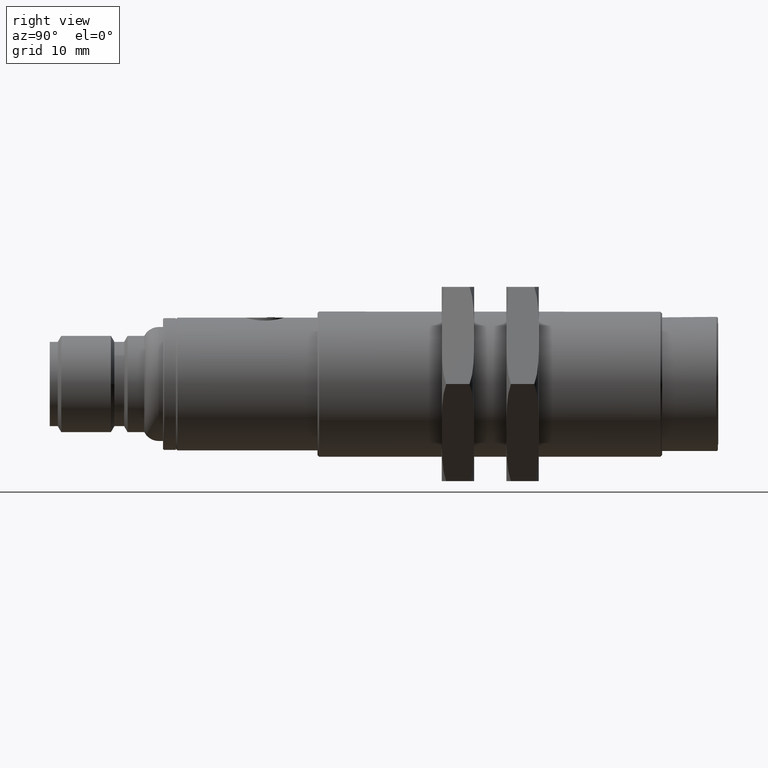
[diagram: clean part render]
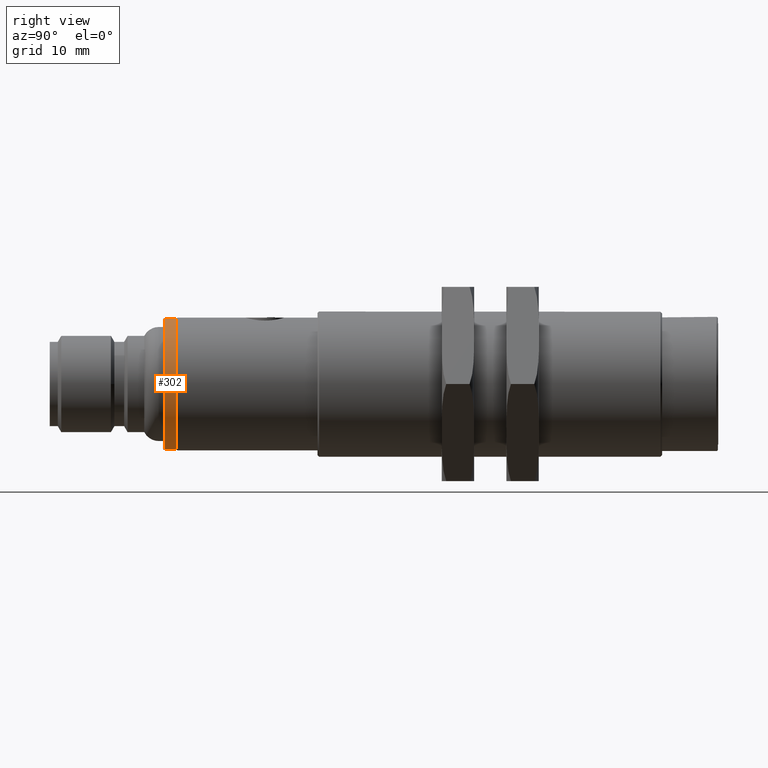
[diagram: same view with one face highlighted and labeled with its STEP entity id]
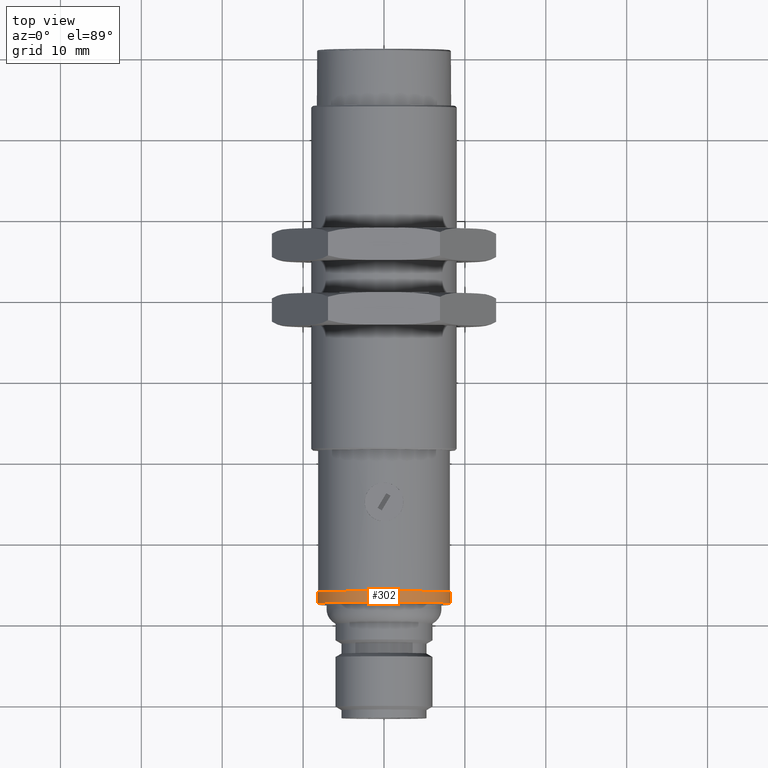
[diagram: same view with one face highlighted and labeled with its STEP entity id]
A machine part, right view. The second image highlights one B-rep face of the part: STEP entity #302.
A second angle (top view) of the same face is appended — the face is thin or edge-on in the first view.
In plain terms, the highlighted cylindrical surface (bore or boss wall) has radius 8.2 mm, axis along (0, -1, 0).
Its self-contained STEP definition (entity closure, byte-faithful):
#18 = EDGE_CURVE ( 'NONE', #1595, #1595, #3892, .T. ) ;
#50 = CARTESIAN_POINT ( 'NONE',  ( 0.000000000000000000, -1.024959437166984122, -0.003432467006220472731 ) ) ;
#302 = ADVANCED_FACE ( 'NONE', ( #796, #3517 ), #3446, .T. ) ;
#432 = AXIS2_PLACEMENT_3D ( 'NONE', #2782, #774, #3107 ) ;
#632 = CARTESIAN_POINT ( 'NONE',  ( -0.3228346456692913757, -1.024959437166984122, -0.003432460299556047527 ) ) ;
#670 = ORIENTED_EDGE ( 'NONE', *, *, #18, .F. ) ;
#774 = DIRECTION ( 'NONE',  ( 0.000000000000000000, -1.000000000000000000, 0.000000000000000000 ) ) ;
#796 = FACE_OUTER_BOUND ( 'NONE', #1893, .T. ) ;
#987 = VERTEX_POINT ( 'NONE', #1738 ) ;
#1022 = DIRECTION ( 'NONE',  ( -0.9999999999999997780, 0.000000000000000000, 2.077430200071127102E-08 ) ) ;
#1079 = DIRECTION ( 'NONE',  ( -0.9999999999999997780, 0.000000000000000000, 2.077430200071127102E-08 ) ) ;
#1463 = EDGE_CURVE ( 'NONE', #987, #987, #2877, .T. ) ;
#1595 = VERTEX_POINT ( 'NONE', #632 ) ;
#1738 = CARTESIAN_POINT ( 'NONE',  ( -0.3228346456692913757, -1.080077547403204719, -0.003432460299556047527 ) ) ;
#1893 = EDGE_LOOP ( 'NONE', ( #670 ) ) ;
#1936 = AXIS2_PLACEMENT_3D ( 'NONE', #50, #2790, #1079 ) ;
#2782 = CARTESIAN_POINT ( 'NONE',  ( 0.000000000000000000, -1.024959437166984122, -0.003432467006220472731 ) ) ;
#2790 = DIRECTION ( 'NONE',  ( 0.000000000000000000, 1.000000000000000000, 0.000000000000000000 ) ) ;
#2877 = CIRCLE ( 'NONE', #4260, 0.3228346456692914312 ) ;
#3034 = DIRECTION ( 'NONE',  ( 0.000000000000000000, 1.000000000000000000, 0.000000000000000000 ) ) ;
#3104 = CARTESIAN_POINT ( 'NONE',  ( 0.000000000000000000, -1.080077547403204719, -0.003432467006220472731 ) ) ;
#3107 = DIRECTION ( 'NONE',  ( -0.9999999999999997780, 0.000000000000000000, 2.077430200071127102E-08 ) ) ;
#3368 = ORIENTED_EDGE ( 'NONE', *, *, #1463, .T. ) ;
#3446 = CYLINDRICAL_SURFACE ( 'NONE', #432, 0.3228346456692914312 ) ;
#3517 = FACE_OUTER_BOUND ( 'NONE', #4394, .T. ) ;
#3892 = CIRCLE ( 'NONE', #1936, 0.3228346456692914312 ) ;
#4260 = AXIS2_PLACEMENT_3D ( 'NONE', #3104, #3034, #1022 ) ;
#4394 = EDGE_LOOP ( 'NONE', ( #3368 ) ) ;